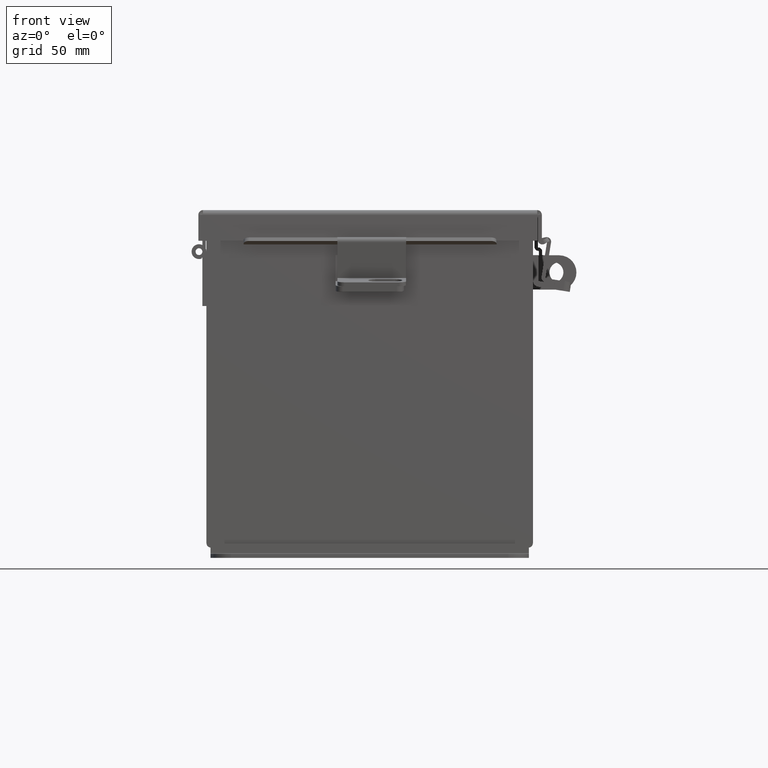
[diagram: clean part render]
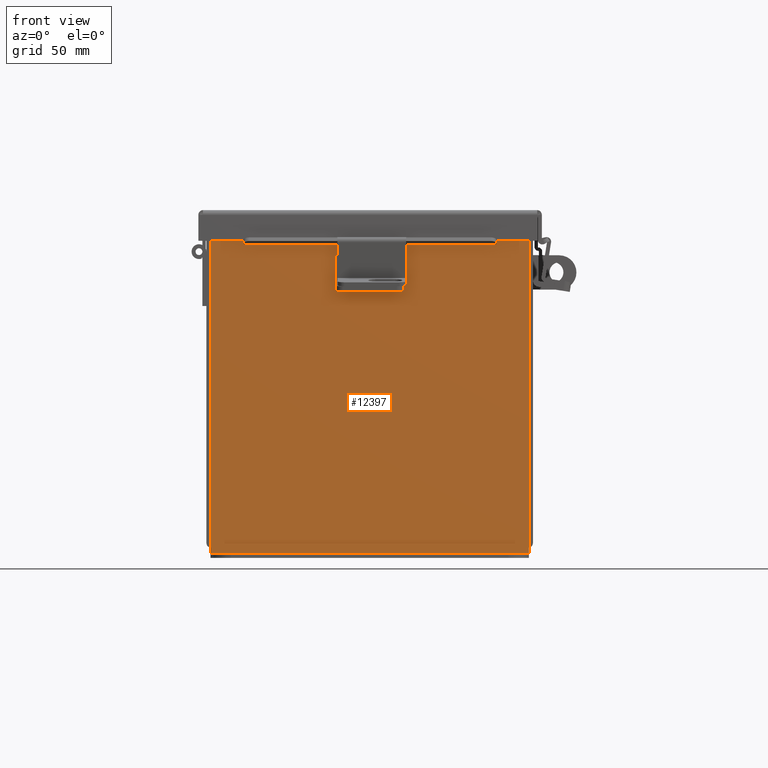
[diagram: same view with one face highlighted and labeled with its STEP entity id]
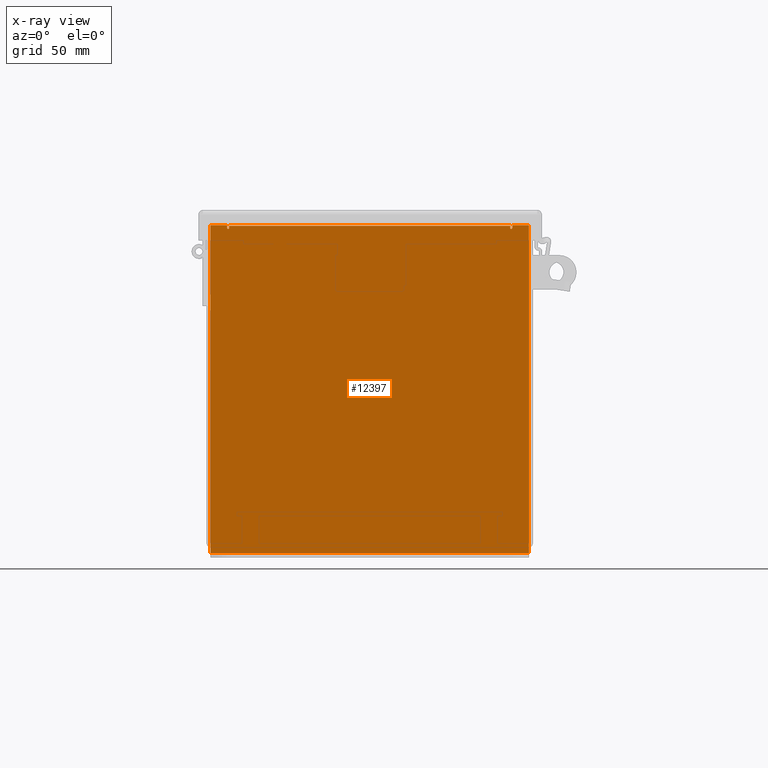
[diagram: x-ray of the same camera — body ghosted, the highlighted face saturated]
A machine part, front view. The second image highlights one B-rep face of the part: STEP entity #12397.
The next image is the same camera in x-ray: the body ghosted, the highlighted face saturated — about 0% of this face is hidden behind the body in this view.
In plain terms, the highlighted planar face has unit normal (-0, 1, -0).
Its self-contained STEP definition (entity closure, byte-faithful):
#65 = DIRECTION ( 'NONE',  ( 4.910036603141682400E-031, 1.000000000000000000, -0.0000000000000000000 ) ) ;
#164 = CARTESIAN_POINT ( 'NONE',  ( -2.619649999999998300, -4.370956789862821100E-015, 2.925300000000000000 ) ) ;
#250 = AXIS2_PLACEMENT_3D ( 'NONE', #13551, #6426, #14761 ) ;
#317 = EDGE_LOOP ( 'NONE', ( #7093, #330, #4370, #11483, #13169, #2829, #8757, #6906, #9539, #8378, #7972, #14208 ) ) ;
#321 = VECTOR ( 'NONE', #15339, 39.37007874015748100 ) ;
#330 = ORIENTED_EDGE ( 'NONE', *, *, #12205, .F. ) ;
#940 = DIRECTION ( 'NONE',  ( 0.0000000000000000000, 0.0000000000000000000, 1.000000000000000000 ) ) ;
#1096 = VECTOR ( 'NONE', #12640, 39.37007874015748100 ) ;
#1849 = CARTESIAN_POINT ( 'NONE',  ( 2.925300000000001800, 0.0000000000000000000, -3.099300000000000400 ) ) ;
#2011 = DIRECTION ( 'NONE',  ( 1.000000000000000000, 4.910036603141682400E-031, 0.0000000000000000000 ) ) ;
#2039 = EDGE_CURVE ( 'NONE', #13819, #11096, #7412, .T. ) ;
#2042 = EDGE_CURVE ( 'NONE', #13819, #5152, #13728, .T. ) ;
#2147 = VERTEX_POINT ( 'NONE', #8077 ) ;
#2465 = VECTOR ( 'NONE', #6098, 39.37007874015748100 ) ;
#2601 = DIRECTION ( 'NONE',  ( 0.0000000000000000000, 0.0000000000000000000, -1.000000000000000000 ) ) ;
#2829 = ORIENTED_EDGE ( 'NONE', *, *, #7396, .F. ) ;
#2842 = EDGE_CURVE ( 'NONE', #4922, #5620, #8068, .T. ) ;
#3033 = DIRECTION ( 'NONE',  ( 0.0000000000000000000, 0.0000000000000000000, 1.000000000000000000 ) ) ;
#3212 = CARTESIAN_POINT ( 'NONE',  ( -2.582299999999998300, -3.278217592397115900E-015, 2.912300000000000100 ) ) ;
#3310 = VERTEX_POINT ( 'NONE', #5800 ) ;
#3442 = LINE ( 'NONE', #9513, #14988 ) ;
#3452 = CIRCLE ( 'NONE', #5278, 0.01867500000000003900 ) ;
#3490 = EDGE_CURVE ( 'NONE', #11096, #4873, #9328, .T. ) ;
#3597 = DIRECTION ( 'NONE',  ( 0.0000000000000000000, 0.0000000000000000000, -1.000000000000000000 ) ) ;
#3634 = FACE_OUTER_BOUND ( 'NONE', #317, .T. ) ;
#3713 = CARTESIAN_POINT ( 'NONE',  ( 2.582300000000001400, 0.0000000000000000000, 0.0000000000000000000 ) ) ;
#3853 = CARTESIAN_POINT ( 'NONE',  ( 2.600975000000001800, 0.0000000000000000000, 2.874949999999997900 ) ) ;
#4370 = ORIENTED_EDGE ( 'NONE', *, *, #12840, .F. ) ;
#4397 = CARTESIAN_POINT ( 'NONE',  ( -2.619649999999998300, -4.370956789862821100E-015, 2.874949999999998800 ) ) ;
#4570 = EDGE_CURVE ( 'NONE', #4922, #4873, #11347, .T. ) ;
#4579 = VECTOR ( 'NONE', #2011, 39.37007874015748100 ) ;
#4829 = CARTESIAN_POINT ( 'NONE',  ( -2.925299999999998200, -4.370956789862821100E-015, -3.099299999999995900 ) ) ;
#4873 = VERTEX_POINT ( 'NONE', #1849 ) ;
#4922 = VERTEX_POINT ( 'NONE', #10187 ) ;
#5041 = DIRECTION ( 'NONE',  ( 0.0000000000000000000, 0.0000000000000000000, -1.000000000000000000 ) ) ;
#5152 = VERTEX_POINT ( 'NONE', #15372 ) ;
#5278 = AXIS2_PLACEMENT_3D ( 'NONE', #7163, #65, #8343 ) ;
#5561 = EDGE_CURVE ( 'NONE', #2147, #13231, #15226, .T. ) ;
#5578 = DIRECTION ( 'NONE',  ( 1.000000000000000000, 4.910036603141682400E-031, -0.0000000000000000000 ) ) ;
#5620 = VERTEX_POINT ( 'NONE', #5680 ) ;
#5680 = CARTESIAN_POINT ( 'NONE',  ( -2.925299999999998200, -4.370956789862821100E-015, 2.925300000000001300 ) ) ;
#5800 = CARTESIAN_POINT ( 'NONE',  ( 2.582300000000001400, 0.0000000000000000000, 2.874949999999997900 ) ) ;
#6098 = DIRECTION ( 'NONE',  ( 0.0000000000000000000, 0.0000000000000000000, 1.000000000000000000 ) ) ;
#6426 = DIRECTION ( 'NONE',  ( -4.910036603141682400E-031, -1.000000000000000000, -0.0000000000000000000 ) ) ;
#6533 = VECTOR ( 'NONE', #14367, 39.37007874015748100 ) ;
#6735 = VERTEX_POINT ( 'NONE', #164 ) ;
#6906 = ORIENTED_EDGE ( 'NONE', *, *, #2039, .T. ) ;
#6991 = CARTESIAN_POINT ( 'NONE',  ( -2.925299999999998200, -4.370956789862821100E-015, 2.925300000000001300 ) ) ;
#7093 = ORIENTED_EDGE ( 'NONE', *, *, #11698, .F. ) ;
#7163 = CARTESIAN_POINT ( 'NONE',  ( -2.600974999999998300, -4.370956789862821100E-015, 2.874949999999998800 ) ) ;
#7392 = CIRCLE ( 'NONE', #7941, 0.01867500000000003900 ) ;
#7396 = EDGE_CURVE ( 'NONE', #5152, #3310, #7392, .T. ) ;
#7401 = LINE ( 'NONE', #10133, #15365 ) ;
#7412 = LINE ( 'NONE', #9099, #4579 ) ;
#7777 = CARTESIAN_POINT ( 'NONE',  ( 2.925300000000001800, 0.0000000000000000000, 2.925299999999997800 ) ) ;
#7911 = VERTEX_POINT ( 'NONE', #13103 ) ;
#7941 = AXIS2_PLACEMENT_3D ( 'NONE', #3853, #12176, #5041 ) ;
#7972 = ORIENTED_EDGE ( 'NONE', *, *, #2842, .T. ) ;
#8068 = LINE ( 'NONE', #10428, #14017 ) ;
#8077 = CARTESIAN_POINT ( 'NONE',  ( -2.582299999999998300, -3.278217592397115900E-015, 2.912300000000000100 ) ) ;
#8343 = DIRECTION ( 'NONE',  ( 0.0000000000000000000, 0.0000000000000000000, -1.000000000000000000 ) ) ;
#8378 = ORIENTED_EDGE ( 'NONE', *, *, #4570, .F. ) ;
#8757 = ORIENTED_EDGE ( 'NONE', *, *, #2042, .F. ) ;
#8771 = LINE ( 'NONE', #3713, #2465 ) ;
#8964 = VECTOR ( 'NONE', #2601, 39.37007874015748100 ) ;
#9099 = CARTESIAN_POINT ( 'NONE',  ( -2.925299999999998200, -4.370956789862821100E-015, 2.925300000000001300 ) ) ;
#9179 = CARTESIAN_POINT ( 'NONE',  ( 2.619650000000001800, 0.0000000000000000000, 2.925299999999999100 ) ) ;
#9328 = LINE ( 'NONE', #9699, #8964 ) ;
#9513 = CARTESIAN_POINT ( 'NONE',  ( -2.582299999999998300, 0.0000000000000000000, 0.0000000000000000000 ) ) ;
#9539 = ORIENTED_EDGE ( 'NONE', *, *, #3490, .T. ) ;
#9699 = CARTESIAN_POINT ( 'NONE',  ( 2.925300000000001800, 0.0000000000000000000, 2.925299999999997800 ) ) ;
#9948 = PLANE ( 'NONE',  #250 ) ;
#10133 = CARTESIAN_POINT ( 'NONE',  ( -2.619649999999998300, 0.0000000000000000000, 0.0000000000000000000 ) ) ;
#10146 = LINE ( 'NONE', #6991, #321 ) ;
#10187 = CARTESIAN_POINT ( 'NONE',  ( -2.925299999999997800, -4.370956789862821100E-015, -3.099299999999995900 ) ) ;
#10428 = CARTESIAN_POINT ( 'NONE',  ( -2.925299999999998200, -4.370956789862821100E-015, 2.925300000000001300 ) ) ;
#11096 = VERTEX_POINT ( 'NONE', #7777 ) ;
#11347 = LINE ( 'NONE', #4829, #6533 ) ;
#11483 = ORIENTED_EDGE ( 'NONE', *, *, #5561, .T. ) ;
#11698 = EDGE_CURVE ( 'NONE', #13184, #6735, #7401, .T. ) ;
#12062 = VECTOR ( 'NONE', #5578, 39.37007874015748100 ) ;
#12176 = DIRECTION ( 'NONE',  ( 4.910036603141682400E-031, 1.000000000000000000, -0.0000000000000000000 ) ) ;
#12205 = EDGE_CURVE ( 'NONE', #7911, #13184, #3452, .T. ) ;
#12397 = ADVANCED_FACE ( 'NONE', ( #3634 ), #9948, .F. ) ;
#12640 = DIRECTION ( 'NONE',  ( -1.085143195099989400E-014, 0.0000000000000000000, -1.000000000000000000 ) ) ;
#12768 = EDGE_CURVE ( 'NONE', #5620, #6735, #10146, .T. ) ;
#12838 = CARTESIAN_POINT ( 'NONE',  ( 2.582300000000001400, 0.0000000000000000000, 2.912299999999998800 ) ) ;
#12840 = EDGE_CURVE ( 'NONE', #2147, #7911, #3442, .T. ) ;
#13103 = CARTESIAN_POINT ( 'NONE',  ( -2.582299999999998300, -4.370956789862821100E-015, 2.874949999999998800 ) ) ;
#13169 = ORIENTED_EDGE ( 'NONE', *, *, #15184, .F. ) ;
#13184 = VERTEX_POINT ( 'NONE', #4397 ) ;
#13231 = VERTEX_POINT ( 'NONE', #12838 ) ;
#13551 = CARTESIAN_POINT ( 'NONE',  ( 0.0000000000000000000, 0.0000000000000000000, 0.0000000000000000000 ) ) ;
#13728 = LINE ( 'NONE', #15039, #1096 ) ;
#13819 = VERTEX_POINT ( 'NONE', #9179 ) ;
#14017 = VECTOR ( 'NONE', #940, 39.37007874015748100 ) ;
#14208 = ORIENTED_EDGE ( 'NONE', *, *, #12768, .T. ) ;
#14367 = DIRECTION ( 'NONE',  ( 1.000000000000000000, 4.910036603141682400E-031, -0.0000000000000000000 ) ) ;
#14761 = DIRECTION ( 'NONE',  ( 0.0000000000000000000, 0.0000000000000000000, -1.000000000000000000 ) ) ;
#14988 = VECTOR ( 'NONE', #3597, 39.37007874015748100 ) ;
#15039 = CARTESIAN_POINT ( 'NONE',  ( 2.619649999999970700, 0.0000000000000000000, -2.458663194297836900E-014 ) ) ;
#15184 = EDGE_CURVE ( 'NONE', #3310, #13231, #8771, .T. ) ;
#15226 = LINE ( 'NONE', #3212, #12062 ) ;
#15339 = DIRECTION ( 'NONE',  ( 1.000000000000000000, 4.910036603141682400E-031, 0.0000000000000000000 ) ) ;
#15365 = VECTOR ( 'NONE', #3033, 39.37007874015748100 ) ;
#15372 = CARTESIAN_POINT ( 'NONE',  ( 2.619650000000001800, 0.0000000000000000000, 2.874949999999998800 ) ) ;